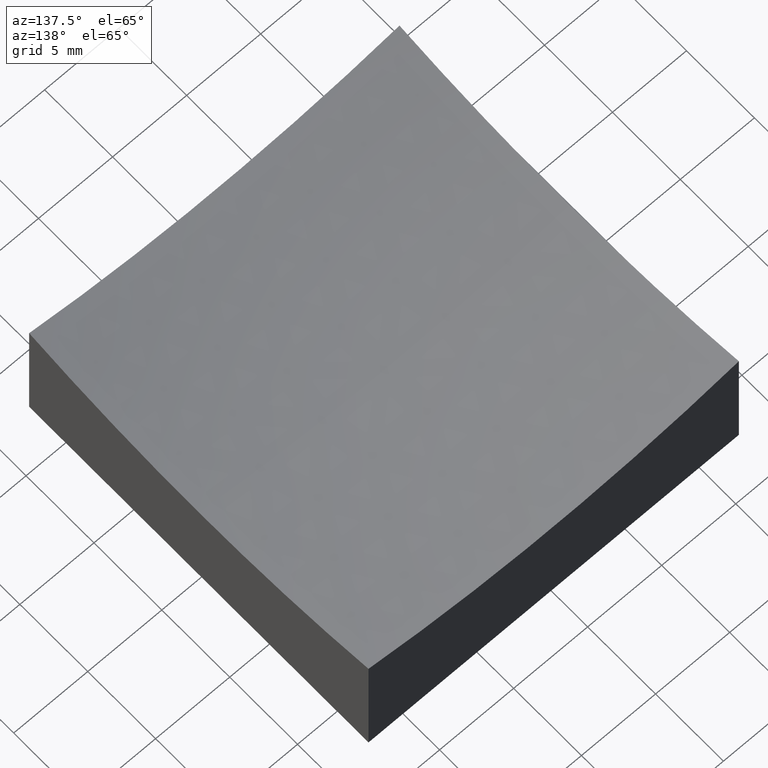
[diagram: clean part render]
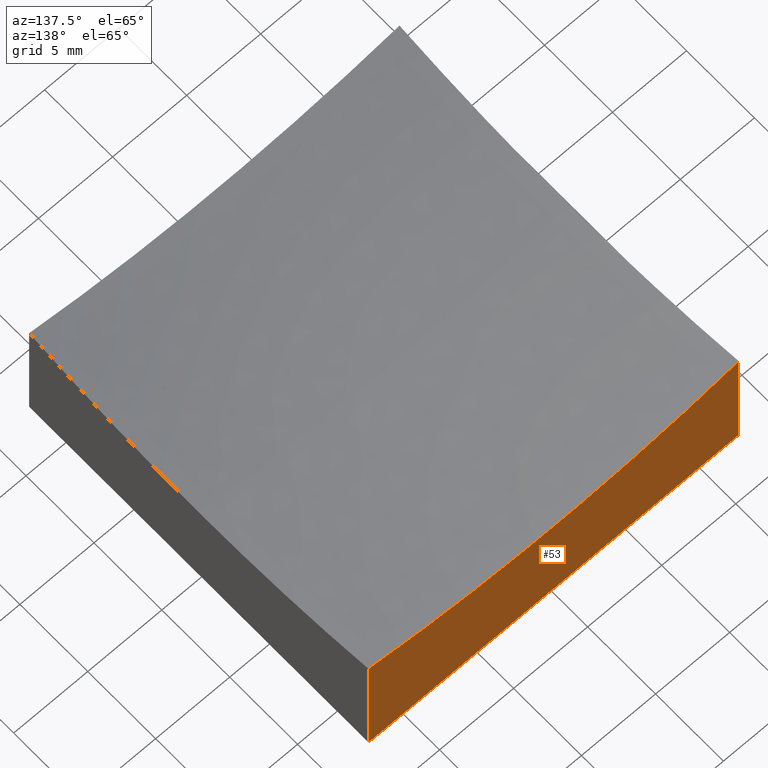
[diagram: same view with one face highlighted and labeled with its STEP entity id]
A machine part, auxiliary view. The second image highlights one B-rep face of the part: STEP entity #53.
In plain terms, the highlighted planar face has unit normal (0, 1, 0).
Its self-contained STEP definition (entity closure, byte-faithful):
#7 = ORIENTED_EDGE ( 'NONE', *, *, #137, .F. ) ;
#8 = EDGE_CURVE ( 'NONE', #87, #227, #148, .T. ) ;
#13 = DIRECTION ( 'NONE',  ( -0.0000000000000000000, -0.0000000000000000000, -1.000000000000000000 ) ) ;
#25 = CARTESIAN_POINT ( 'NONE',  ( 12.50000000000000000, 12.50000000000000000, 0.0000000000000000000 ) ) ;
#31 = CARTESIAN_POINT ( 'NONE',  ( 12.50000000000000000, 12.50000000000000000, 20.00000000000000000 ) ) ;
#37 = DIRECTION ( 'NONE',  ( -0.0000000000000000000, -0.0000000000000000000, -1.000000000000000000 ) ) ;
#44 = EDGE_CURVE ( 'NONE', #87, #223, #164, .T. ) ;
#45 = FACE_OUTER_BOUND ( 'NONE', #144, .T. ) ;
#50 = ORIENTED_EDGE ( 'NONE', *, *, #44, .F. ) ;
#51 = LINE ( 'NONE', #77, #166 ) ;
#53 = ADVANCED_FACE ( 'NONE', ( #45 ), #242, .T. ) ;
#66 = DIRECTION ( 'NONE',  ( 0.0000000000000000000, 1.000000000000000000, 0.0000000000000000000 ) ) ;
#77 = CARTESIAN_POINT ( 'NONE',  ( -12.50000000000000000, 12.50000000000000000, 20.00000000000000000 ) ) ;
#87 = VERTEX_POINT ( 'NONE', #190 ) ;
#97 = DIRECTION ( 'NONE',  ( 1.000000000000000000, 0.0000000000000000000, 0.0000000000000000000 ) ) ;
#102 = EDGE_CURVE ( 'NONE', #245, #227, #153, .T. ) ;
#113 = DIRECTION ( 'NONE',  ( 0.0000000000000000000, 0.0000000000000000000, 1.000000000000000000 ) ) ;
#125 = AXIS2_PLACEMENT_3D ( 'NONE', #183, #66, #150 ) ;
#137 = EDGE_CURVE ( 'NONE', #223, #245, #51, .T. ) ;
#141 = AXIS2_PLACEMENT_3D ( 'NONE', #167, #246, #113 ) ;
#144 = EDGE_LOOP ( 'NONE', ( #50, #186, #147, #7 ) ) ;
#147 = ORIENTED_EDGE ( 'NONE', *, *, #102, .F. ) ;
#148 = LINE ( 'NONE', #31, #180 ) ;
#150 = DIRECTION ( 'NONE',  ( 0.0000000000000000000, -0.0000000000000000000, 1.000000000000000000 ) ) ;
#153 = LINE ( 'NONE', #174, #196 ) ;
#162 = CARTESIAN_POINT ( 'NONE',  ( -12.50000000000000000, 12.50000000000000000, 0.0000000000000000000 ) ) ;
#164 = CIRCLE ( 'NONE', #141, 58.68347297152751452 ) ;
#166 = VECTOR ( 'NONE', #37, 1000.000000000000000 ) ;
#167 = CARTESIAN_POINT ( 'NONE',  ( 8.082668874372532400E-15, 12.50000000000000000, 66.00000000000000000 ) ) ;
#174 = CARTESIAN_POINT ( 'NONE',  ( -12.50000000000000000, 12.50000000000000000, 0.0000000000000000000 ) ) ;
#178 = CARTESIAN_POINT ( 'NONE',  ( -12.50000000000000000, 12.50000000000000000, 8.663275294101428159 ) ) ;
#180 = VECTOR ( 'NONE', #13, 1000.000000000000000 ) ;
#183 = CARTESIAN_POINT ( 'NONE',  ( -12.50000000000000000, 12.50000000000000000, 20.00000000000000000 ) ) ;
#186 = ORIENTED_EDGE ( 'NONE', *, *, #8, .T. ) ;
#190 = CARTESIAN_POINT ( 'NONE',  ( 12.50000000000000000, 12.50000000000000000, 8.663275294101428159 ) ) ;
#196 = VECTOR ( 'NONE', #97, 1000.000000000000000 ) ;
#223 = VERTEX_POINT ( 'NONE', #178 ) ;
#227 = VERTEX_POINT ( 'NONE', #25 ) ;
#242 = PLANE ( 'NONE',  #125 ) ;
#245 = VERTEX_POINT ( 'NONE', #162 ) ;
#246 = DIRECTION ( 'NONE',  ( 0.0000000000000000000, 1.000000000000000000, 0.0000000000000000000 ) ) ;